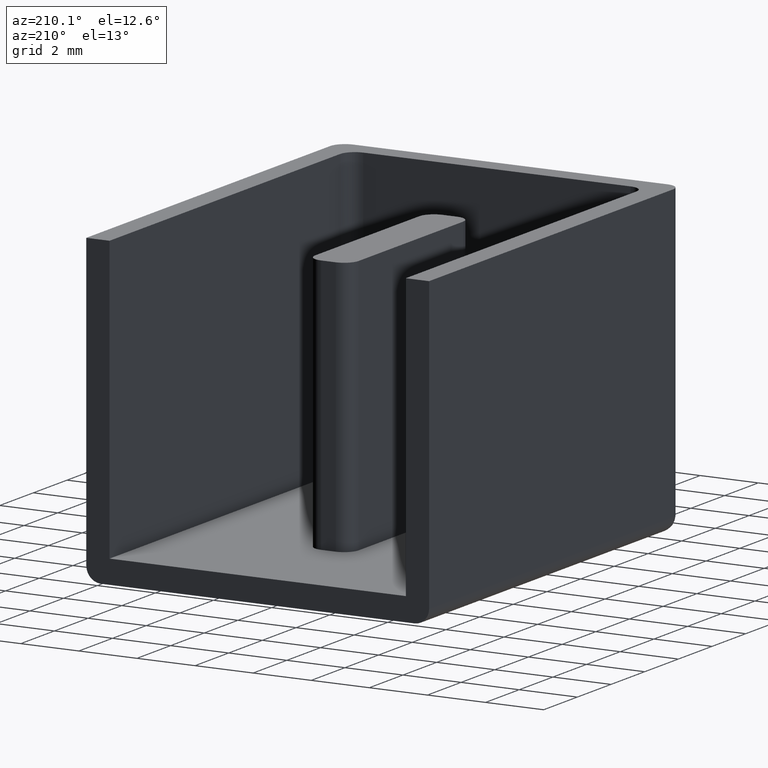
[diagram: clean part render]
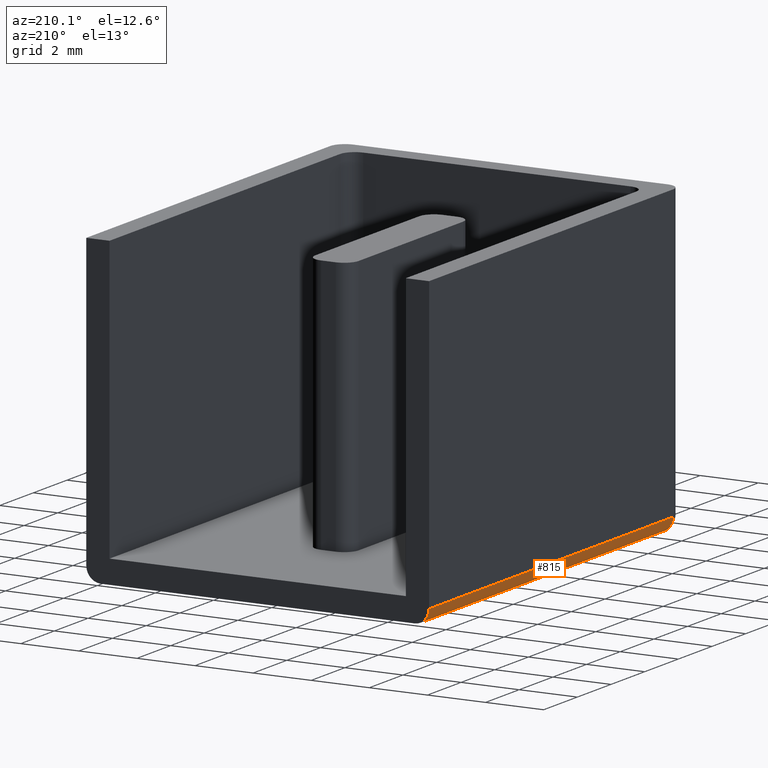
[diagram: same view with one face highlighted and labeled with its STEP entity id]
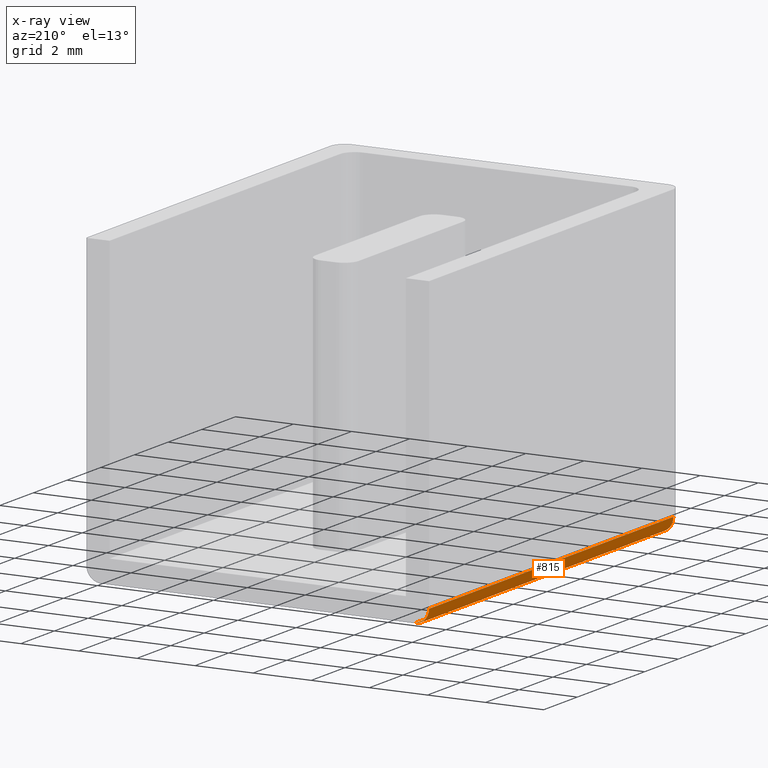
[diagram: x-ray of the same camera — body ghosted, the highlighted face saturated]
A machine part, auxiliary view. The second image highlights one B-rep face of the part: STEP entity #815.
The next image is the same camera in x-ray: the body ghosted, the highlighted face saturated — about 0% of this face is hidden behind the body in this view.
In plain terms, the highlighted cylindrical surface (edge-blend (fillet) strip) has radius 0.5 mm, axis along (0, 1, 0).
Its self-contained STEP definition (entity closure, byte-faithful):
#15 = AXIS2_PLACEMENT_3D ( 'NONE', #470, #437, #459 ) ;
#55 = CIRCLE ( 'NONE', #56, 0.5000000000000000000 ) ;
#56 = AXIS2_PLACEMENT_3D ( 'NONE', #626, #601, #600 ) ;
#79 = VECTOR ( 'NONE', #593, 1000.000000000000000 ) ;
#116 = VECTOR ( 'NONE', #678, 1000.000000000000000 ) ;
#119 = CIRCLE ( 'NONE', #120, 0.5000000000000000000 ) ;
#120 = AXIS2_PLACEMENT_3D ( 'NONE', #741, #755, #752 ) ;
#156 = ORIENTED_EDGE ( 'NONE', *, *, #899, .T. ) ;
#158 = ORIENTED_EDGE ( 'NONE', *, *, #885, .F. ) ;
#167 = ORIENTED_EDGE ( 'NONE', *, *, #844, .T. ) ;
#174 = ORIENTED_EDGE ( 'NONE', *, *, #857, .F. ) ;
#307 = VERTEX_POINT ( 'NONE', #354 ) ;
#310 = EDGE_LOOP ( 'NONE', ( #158, #156, #174, #167 ) ) ;
#331 = VERTEX_POINT ( 'NONE', #366 ) ;
#354 = CARTESIAN_POINT ( 'NONE',  ( 0.0000000000000000000, 0.4999999999999998900, 0.5000000000000004400 ) ) ;
#366 = CARTESIAN_POINT ( 'NONE',  ( 0.4999999999999998900, 15.00000000000000000, 0.0000000000000000000 ) ) ;
#371 = VERTEX_POINT ( 'NONE', #422 ) ;
#373 = VERTEX_POINT ( 'NONE', #430 ) ;
#422 = CARTESIAN_POINT ( 'NONE',  ( 0.4999999999999998900, 0.4999999999999998900, 0.0000000000000000000 ) ) ;
#430 = CARTESIAN_POINT ( 'NONE',  ( 0.0000000000000000000, 15.00000000000000000, 0.5000000000000004400 ) ) ;
#437 = DIRECTION ( 'NONE',  ( 0.0000000000000000000, 1.000000000000000000, 0.0000000000000000000 ) ) ;
#454 = CYLINDRICAL_SURFACE ( 'NONE', #15, 0.5000000000000000000 ) ;
#459 = DIRECTION ( 'NONE',  ( 0.0000000000000000000, 0.0000000000000000000, 1.000000000000000000 ) ) ;
#470 = CARTESIAN_POINT ( 'NONE',  ( 0.4999999999999998900, 0.0000000000000000000, 0.5000000000000004400 ) ) ;
#480 = FACE_OUTER_BOUND ( 'NONE', #310, .T. ) ;
#584 = LINE ( 'NONE', #611, #79 ) ;
#593 = DIRECTION ( 'NONE',  ( 0.0000000000000000000, -1.000000000000000000, 0.0000000000000000000 ) ) ;
#600 = DIRECTION ( 'NONE',  ( 0.0000000000000000000, 0.0000000000000000000, -1.000000000000000000 ) ) ;
#601 = DIRECTION ( 'NONE',  ( 0.0000000000000000000, -1.000000000000000000, 0.0000000000000000000 ) ) ;
#611 = CARTESIAN_POINT ( 'NONE',  ( 0.0000000000000000000, 0.0000000000000000000, 0.5000000000000004400 ) ) ;
#626 = CARTESIAN_POINT ( 'NONE',  ( 0.4999999999999998900, 15.00000000000000000, 0.5000000000000004400 ) ) ;
#678 = DIRECTION ( 'NONE',  ( -0.0000000000000000000, 1.000000000000000000, -0.0000000000000000000 ) ) ;
#690 = CARTESIAN_POINT ( 'NONE',  ( 0.4999999999999998900, 15.00000000000000000, 0.0000000000000000000 ) ) ;
#710 = LINE ( 'NONE', #690, #116 ) ;
#741 = CARTESIAN_POINT ( 'NONE',  ( 0.4999999999999998900, 0.4999999999999998900, 0.5000000000000004400 ) ) ;
#752 = DIRECTION ( 'NONE',  ( 0.0000000000000000000, 0.0000000000000000000, 1.000000000000000000 ) ) ;
#755 = DIRECTION ( 'NONE',  ( 0.0000000000000000000, 1.000000000000000000, 0.0000000000000000000 ) ) ;
#815 = ADVANCED_FACE ( 'NONE', ( #480 ), #454, .T. ) ;
#844 = EDGE_CURVE ( 'NONE', #373, #331, #55, .T. ) ;
#857 = EDGE_CURVE ( 'NONE', #373, #307, #584, .T. ) ;
#885 = EDGE_CURVE ( 'NONE', #371, #331, #710, .T. ) ;
#899 = EDGE_CURVE ( 'NONE', #371, #307, #119, .T. ) ;